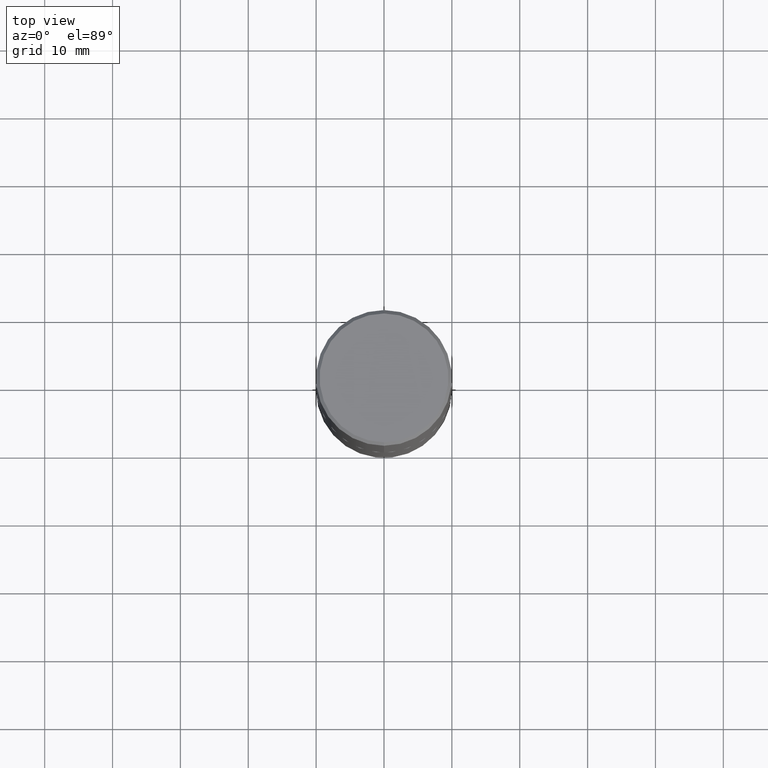
[diagram: clean part render]
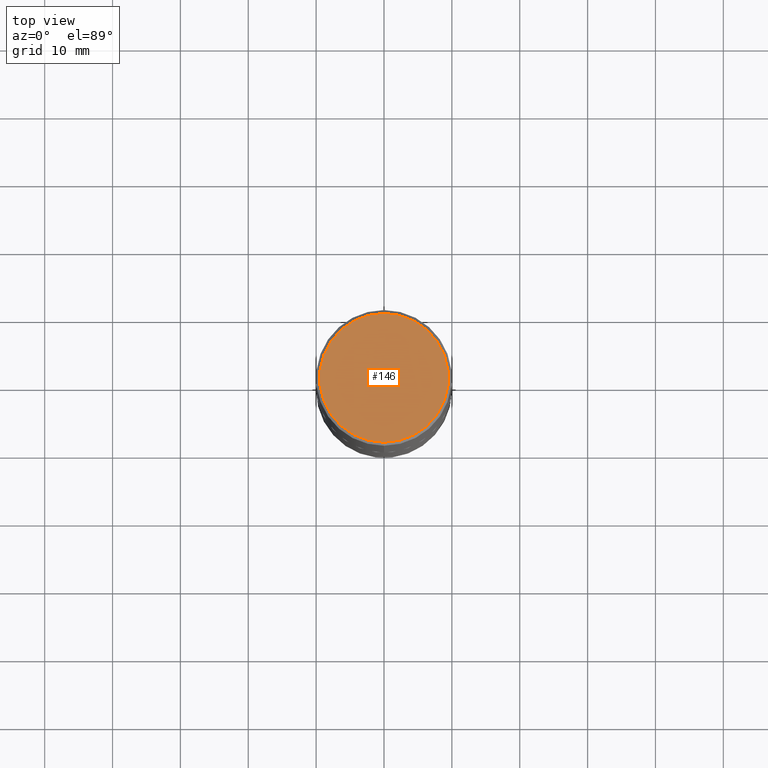
[diagram: same view with one face highlighted and labeled with its STEP entity id]
A machine part, top view. The second image highlights one B-rep face of the part: STEP entity #146.
In plain terms, the highlighted planar face has unit normal (0, -0, -1).
Its self-contained STEP definition (entity closure, byte-faithful):
#4 = EDGE_CURVE ( 'NONE', #279, #59, #263, .T. ) ;
#8 = PLANE ( 'NONE',  #63 ) ;
#10 = DIRECTION ( 'NONE',  ( 2.446545274162745109E-29, -3.489939775430457441E-15, -1.000000000000000000 ) ) ;
#37 = CARTESIAN_POINT ( 'NONE',  ( -2.632373081744935132E-15, -0.3736999999999998101, 1.504234498865758996E-15 ) ) ;
#39 = CARTESIAN_POINT ( 'NONE',  ( 2.609533152651356226E-15, 0.3736999999999998101, -1.204168491684662434E-15 ) ) ;
#59 = VERTEX_POINT ( 'NONE', #37 ) ;
#63 = AXIS2_PLACEMENT_3D ( 'NONE', #39, #10, #396 ) ;
#99 = AXIS2_PLACEMENT_3D ( 'NONE', #292, #388, #418 ) ;
#122 = DIRECTION ( 'NONE',  ( -2.446545274162745389E-29, 3.489939775430457441E-15, 1.000000000000000000 ) ) ;
#146 = ADVANCED_FACE ( 'NONE', ( #302 ), #8, .F. ) ;
#161 = EDGE_LOOP ( 'NONE', ( #167, #314 ) ) ;
#167 = ORIENTED_EDGE ( 'NONE', *, *, #4, .T. ) ;
#187 = CARTESIAN_POINT ( 'NONE',  ( -4.894167145371975089E-45, 6.981415291439400794E-31, 2.000440047873977323E-16 ) ) ;
#189 = DIRECTION ( 'NONE',  ( -6.982962677686265922E-15, -1.000000000000000000, 3.489939775430457441E-15 ) ) ;
#263 = CIRCLE ( 'NONE', #99, 0.3736999999999998101 ) ;
#270 = CIRCLE ( 'NONE', #404, 0.3736999999999998101 ) ;
#279 = VERTEX_POINT ( 'NONE', #338 ) ;
#292 = CARTESIAN_POINT ( 'NONE',  ( -4.894167145371975089E-45, 6.981415291439400794E-31, 2.000440047873977323E-16 ) ) ;
#302 = FACE_OUTER_BOUND ( 'NONE', #161, .T. ) ;
#314 = ORIENTED_EDGE ( 'NONE', *, *, #362, .T. ) ;
#338 = CARTESIAN_POINT ( 'NONE',  ( 2.679362779428219524E-15, 0.3736999999999998101, -1.104146489290963581E-15 ) ) ;
#362 = EDGE_CURVE ( 'NONE', #59, #279, #270, .T. ) ;
#388 = DIRECTION ( 'NONE',  ( -2.446545274162745389E-29, 3.489939775430457441E-15, 1.000000000000000000 ) ) ;
#396 = DIRECTION ( 'NONE',  ( 6.982962677686265922E-15, 1.000000000000000000, -3.489939775430457441E-15 ) ) ;
#404 = AXIS2_PLACEMENT_3D ( 'NONE', #187, #122, #189 ) ;
#418 = DIRECTION ( 'NONE',  ( -6.982962677686265922E-15, -1.000000000000000000, 3.489939775430457441E-15 ) ) ;